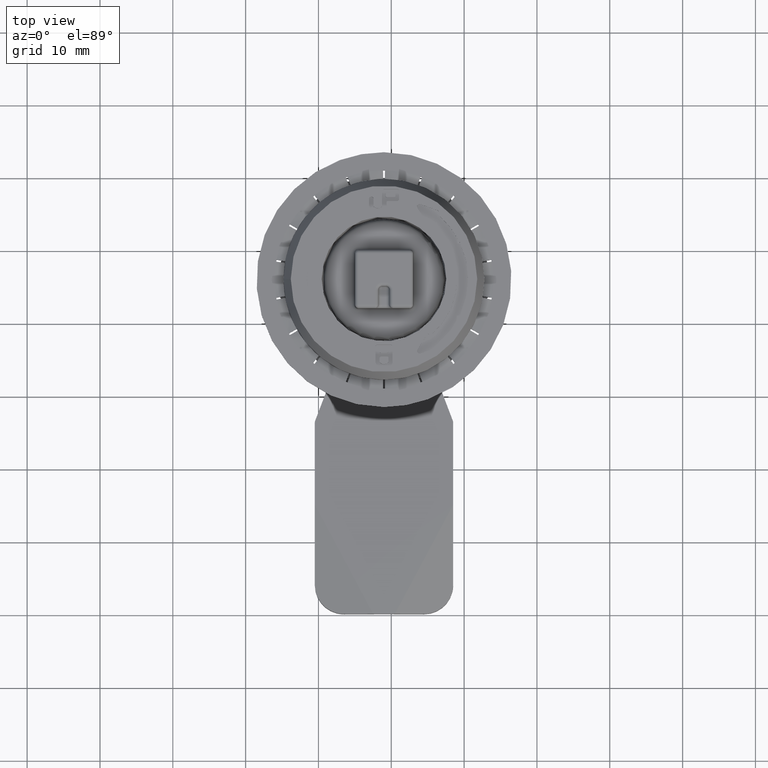
[diagram: clean part render]
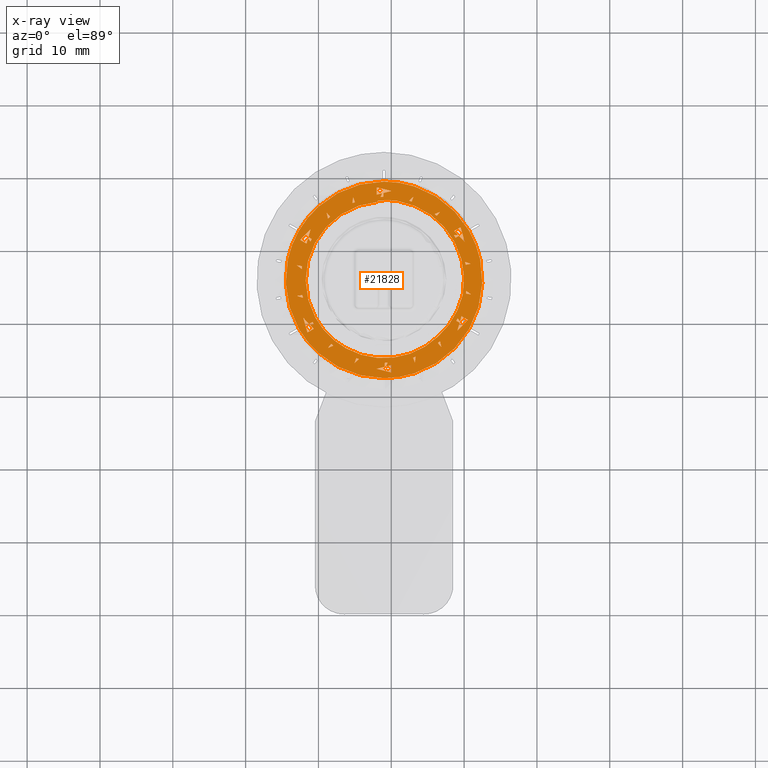
[diagram: x-ray — body ghosted, one internal face saturated and labeled with its STEP entity id]
A machine part, top view, then the same camera in x-ray: the body is ghosted and one INTERNAL B-rep face — a face not visible from any outside direction — is saturated and labeled: STEP entity #21828.
In plain terms, the highlighted planar face has unit normal (0, 0, 1).
Its self-contained STEP definition (entity closure, byte-faithful):
#329=PLANE('',#23096);
#505=CIRCLE('',#22989,11.);
#507=CIRCLE('',#22994,10.75);
#510=CIRCLE('',#22999,11.4011061699629);
#512=CIRCLE('',#23002,11.4011061707328);
#514=CIRCLE('',#23005,11.4011061683875);
#516=CIRCLE('',#23008,11.4011061719454);
#518=CIRCLE('',#23011,11.4011061685947);
#520=CIRCLE('',#23014,11.4011061693796);
#522=CIRCLE('',#23017,11.4011061726943);
#524=CIRCLE('',#23020,11.401106166316);
#526=CIRCLE('',#23023,11.4011061661424);
#528=CIRCLE('',#23026,11.401106169637);
#530=CIRCLE('',#23029,11.4011061709176);
#532=CIRCLE('',#23032,11.4011061681452);
#534=CIRCLE('',#23035,11.4011061720848);
#536=CIRCLE('',#23038,11.4011061711877);
#538=CIRCLE('',#23041,11.4011061697847);
#540=CIRCLE('',#23044,11.4011061702114);
#542=CIRCLE('',#23047,11.4011061664844);
#544=CIRCLE('',#23050,11.4011061694002);
#581=CIRCLE('',#23095,10.75);
#582=CIRCLE('',#23097,10.75);
#1448=FACE_BOUND('',#2826,.T.);
#1449=FACE_BOUND('',#2827,.T.);
#1450=FACE_BOUND('',#2828,.T.);
#1451=FACE_BOUND('',#2829,.T.);
#1452=FACE_BOUND('',#2830,.T.);
#1453=FACE_BOUND('',#2831,.T.);
#1454=FACE_BOUND('',#2832,.T.);
#1455=FACE_BOUND('',#2833,.T.);
#1456=FACE_BOUND('',#2834,.T.);
#1457=FACE_BOUND('',#2835,.T.);
#1458=FACE_BOUND('',#2836,.T.);
#1459=FACE_BOUND('',#2837,.T.);
#1460=FACE_BOUND('',#2838,.T.);
#1461=FACE_BOUND('',#2839,.T.);
#1462=FACE_BOUND('',#2840,.T.);
#1463=FACE_BOUND('',#2841,.T.);
#1464=FACE_BOUND('',#2842,.T.);
#1465=FACE_BOUND('',#2843,.T.);
#1466=FACE_BOUND('',#2844,.T.);
#1607=FACE_OUTER_BOUND('',#2825,.T.);
#2825=EDGE_LOOP('',(#14641,#14642,#14643,#14644,#14645,#14646));
#2826=EDGE_LOOP('',(#14647,#14648,#14649,#14650,#14651,#14652,#14653));
#2827=EDGE_LOOP('',(#14654,#14655,#14656));
#2828=EDGE_LOOP('',(#14657,#14658,#14659));
#2829=EDGE_LOOP('',(#14660,#14661,#14662,#14663,#14664,#14665,#14666));
#2830=EDGE_LOOP('',(#14667,#14668,#14669));
#2831=EDGE_LOOP('',(#14670,#14671,#14672));
#2832=EDGE_LOOP('',(#14673,#14674,#14675,#14676,#14677,#14678,#14679));
#2833=EDGE_LOOP('',(#14680,#14681,#14682));
#2834=EDGE_LOOP('',(#14683,#14684,#14685));
#2835=EDGE_LOOP('',(#14686,#14687,#14688,#14689,#14690,#14691,#14692));
#2836=EDGE_LOOP('',(#14693,#14694,#14695));
#2837=EDGE_LOOP('',(#14696,#14697,#14698));
#2838=EDGE_LOOP('',(#14699,#14700,#14701,#14702,#14703,#14704,#14705));
#2839=EDGE_LOOP('',(#14706,#14707,#14708));
#2840=EDGE_LOOP('',(#14709,#14710,#14711));
#2841=EDGE_LOOP('',(#14712,#14713,#14714,#14715,#14716,#14717,#14718));
#2842=EDGE_LOOP('',(#14719,#14720,#14721));
#2843=EDGE_LOOP('',(#14722,#14723,#14724));
#2844=EDGE_LOOP('',(#14725,#14726,#14727,#14728,#14729,#14730,#14731));
#4101=B_SPLINE_CURVE_WITH_KNOTS('',3,(#29864,#29865,#29866,#29867,#29868,
#29869,#29870),.UNSPECIFIED.,.F.,.F.,(4,3,4),(0.,0.0419832156947917,1.),
 .UNSPECIFIED.);
#4122=B_SPLINE_CURVE_WITH_KNOTS('',3,(#30110,#30111,#30112,#30113,#30114,
#30115,#30116,#30117,#30118,#30119,#30120,#30121,#30122),.UNSPECIFIED.,
 .F.,.F.,(4,3,3,3,4),(2.16908114310143E-7,0.633043742757415,0.680041436642877,
0.892625990137225,1.),.UNSPECIFIED.);
#4224=B_SPLINE_CURVE_WITH_KNOTS('',3,(#32607,#32608,#32609,#32610,#32611,
#32612,#32613,#32614,#32615,#32616),.UNSPECIFIED.,.F.,.F.,(4,2,2,2,4),(1.93284559419782E-6,
0.354007703590843,0.708010203659152,1.06202066225463,1.41599932362331),
 .UNSPECIFIED.);
#4225=B_SPLINE_CURVE_WITH_KNOTS('',3,(#32618,#32619,#32620,#32621,#32622,
#32623,#32624,#32625,#32626,#32627),.UNSPECIFIED.,.F.,.F.,(4,1,1,1,1,1,
1,4),(0.,0.128571425109577,0.277142855084432,0.425714285059201,0.574285715034008,
0.722857145008806,0.871428574983662,1.),.UNSPECIFIED.);
#4226=B_SPLINE_CURVE_WITH_KNOTS('',3,(#32629,#32630,#32631,#32632,#32633,
#32634,#32635,#32636,#32637,#32638),.UNSPECIFIED.,.F.,.F.,(4,2,2,2,4),(-1.41596042771311,
-1.06196428020511,-0.707971369576811,-0.353970519497574,-1.46196090577001E-6),
 .UNSPECIFIED.);
#4227=B_SPLINE_CURVE_WITH_KNOTS('',3,(#32640,#32641,#32642,#32643,#32644,
#32645,#32646,#32647,#32648,#32649,#32650),.UNSPECIFIED.,.F.,.F.,(4,1,1,
1,1,1,1,1,4),(0.,0.0243243728208228,0.164864909345448,0.305405445870073,
0.445945982394692,0.586486518919317,0.727027055443942,0.867567591968567,
1.),.UNSPECIFIED.);
#4228=B_SPLINE_CURVE_WITH_KNOTS('',3,(#32652,#32653,#32654,#32655,#32656,
#32657,#32658,#32659,#32660,#32661,#32662,#32663,#32664,#32665,#32666,#32667,
#32668,#32669,#32670,#32671,#32672,#32673,#32674,#32675,#32676,#32677,#32678,
#32679),.UNSPECIFIED.,.F.,.F.,(4,3,3,3,3,3,3,3,3,4),(0.,0.0081081282640541,
0.148648663022758,0.2891891977805,0.429729732538248,0.570270267295995,0.710810802053737,
0.851351336811485,0.991891871569232,1.),.UNSPECIFIED.);
#4229=B_SPLINE_CURVE_WITH_KNOTS('',3,(#32680,#32681,#32682,#32683,#32684,
#32685,#32686,#32687,#32688,#32689,#32690,#32691,#32692,#32693,#32694,#32695,
#32696,#32697,#32698,#32699,#32700,#32701,#32702,#32703,#32704),
 .UNSPECIFIED.,.F.,.F.,(4,3,3,3,3,3,3,3,4),(0.,0.0243243726907093,0.164864909215614,
0.30540544574147,0.445945982266375,0.58648651879128,0.727027055316185,0.867567591841084,
1.),.UNSPECIFIED.);
#4230=B_SPLINE_CURVE_WITH_KNOTS('',3,(#32708,#32709,#32710,#32711,#32712,
#32713),.UNSPECIFIED.,.F.,.F.,(4,2,4),(-0.0822762916448192,-0.0411395501126673,
-1.79073668617172E-5),.UNSPECIFIED.);
#4231=B_SPLINE_CURVE_WITH_KNOTS('',3,(#32716,#32717,#32718,#32719,#32720,
#32721),.UNSPECIFIED.,.F.,.F.,(4,2,4),(-0.0822762916453266,-0.0411395501129682,
-1.79073667541706E-5),.UNSPECIFIED.);
#4232=B_SPLINE_CURVE_WITH_KNOTS('',3,(#32723,#32724,#32725,#32726,#32727,
#32728),.UNSPECIFIED.,.F.,.F.,(4,2,4),(-0.0560574972412979,-0.028641767561746,
-1.20134654375303E-5),.UNSPECIFIED.);
#4233=B_SPLINE_CURVE_WITH_KNOTS('',3,(#32737,#32738,#32739,#32740,#32741,
#32742),.UNSPECIFIED.,.F.,.F.,(4,2,4),(-0.0822762916456669,-0.0411395501129664,
-1.79073666650056E-5),.UNSPECIFIED.);
#4234=B_SPLINE_CURVE_WITH_KNOTS('',3,(#32745,#32746,#32747,#32748,#32749,
#32750),.UNSPECIFIED.,.F.,.F.,(4,2,4),(-0.0822762916448311,-0.0411395501124006,
-1.79073665879447E-5),.UNSPECIFIED.);
#4235=B_SPLINE_CURVE_WITH_KNOTS('',3,(#32752,#32753,#32754,#32755,#32756,
#32757),.UNSPECIFIED.,.F.,.F.,(4,2,4),(-0.0560577644589737,-0.0286419063829091,
-1.2013465320867E-5),.UNSPECIFIED.);
#4236=B_SPLINE_CURVE_WITH_KNOTS('',3,(#32766,#32767,#32768,#32769,#32770,
#32771),.UNSPECIFIED.,.F.,.F.,(4,2,4),(-0.0822762916461592,-0.0411395501128744,
-1.7907367106053E-5),.UNSPECIFIED.);
#4237=B_SPLINE_CURVE_WITH_KNOTS('',3,(#32774,#32775,#32776,#32777,#32778,
#32779),.UNSPECIFIED.,.F.,.F.,(4,2,4),(-0.0822762916453506,-0.0411395501126497,
-1.79073664604178E-5),.UNSPECIFIED.);
#4238=B_SPLINE_CURVE_WITH_KNOTS('',3,(#32781,#32782,#32783,#32784,#32785,
#32786),.UNSPECIFIED.,.F.,.F.,(4,2,4),(-0.0560592423619338,-0.0286426741596105,
-1.20134653172947E-5),.UNSPECIFIED.);
#4239=B_SPLINE_CURVE_WITH_KNOTS('',3,(#32795,#32796,#32797,#32798,#32799,
#32800),.UNSPECIFIED.,.F.,.F.,(4,2,4),(-0.0822762916450103,-0.0411395501125274,
-1.79073668386345E-5),.UNSPECIFIED.);
#4240=B_SPLINE_CURVE_WITH_KNOTS('',3,(#32803,#32804,#32805,#32806,#32807,
#32808),.UNSPECIFIED.,.F.,.F.,(4,2,4),(-0.0822762916451734,-0.0411395501126704,
-1.79073667507191E-5),.UNSPECIFIED.);
#4241=B_SPLINE_CURVE_WITH_KNOTS('',3,(#32810,#32811,#32812,#32813,#32814,
#32815),.UNSPECIFIED.,.F.,.F.,(4,2,4),(-0.056060453052265,-0.0286433031193188,
-1.2013465452146E-5),.UNSPECIFIED.);
#4242=B_SPLINE_CURVE_WITH_KNOTS('',3,(#32824,#32825,#32826,#32827,#32828,
#32829),.UNSPECIFIED.,.F.,.F.,(4,2,4),(-0.0822762916455337,-0.0411395501128652,
-1.79073665372401E-5),.UNSPECIFIED.);
#4243=B_SPLINE_CURVE_WITH_KNOTS('',3,(#32832,#32833,#32834,#32835,#32836,
#32837),.UNSPECIFIED.,.F.,.F.,(4,2,4),(-0.0822762916450817,-0.0411395501125351,
-1.79073665619103E-5),.UNSPECIFIED.);
#4244=B_SPLINE_CURVE_WITH_KNOTS('',3,(#32839,#32840,#32841,#32842,#32843,
#32844),.UNSPECIFIED.,.F.,.F.,(4,2,4),(-0.0560601858323974,-0.028643164297338,
-1.20134653189661E-5),.UNSPECIFIED.);
#4245=B_SPLINE_CURVE_WITH_KNOTS('',3,(#32853,#32854,#32855,#32856,#32857,
#32858),.UNSPECIFIED.,.F.,.F.,(4,2,4),(-0.0822762916457709,-0.0411395501128844,
-1.79073670869515E-5),.UNSPECIFIED.);
#4246=B_SPLINE_CURVE_WITH_KNOTS('',3,(#32861,#32862,#32863,#32864,#32865,
#32866),.UNSPECIFIED.,.F.,.F.,(4,2,4),(-0.0822762916443358,-0.0411395501121324,
-1.79073662799071E-5),.UNSPECIFIED.);
#4247=B_SPLINE_CURVE_WITH_KNOTS('',3,(#32868,#32869,#32870,#32871,#32872,
#32873),.UNSPECIFIED.,.F.,.F.,(4,2,4),(-0.0560587079255039,-0.0286423965174396,
-1.20134653318734E-5),.UNSPECIFIED.);
#5686=LINE('',#32516,#7021);
#5688=LINE('',#32526,#7023);
#5690=LINE('',#32536,#7025);
#5692=LINE('',#32546,#7027);
#5694=LINE('',#32556,#7029);
#5696=LINE('',#32566,#7031);
#5698=LINE('',#32706,#7033);
#5699=LINE('',#32714,#7034);
#5700=LINE('',#32722,#7035);
#5701=LINE('',#32730,#7036);
#5702=LINE('',#32732,#7037);
#5703=LINE('',#32734,#7038);
#5704=LINE('',#32735,#7039);
#5705=LINE('',#32743,#7040);
#5706=LINE('',#32751,#7041);
#5707=LINE('',#32759,#7042);
#5708=LINE('',#32761,#7043);
#5709=LINE('',#32763,#7044);
#5710=LINE('',#32764,#7045);
#5711=LINE('',#32772,#7046);
#5712=LINE('',#32780,#7047);
#5713=LINE('',#32788,#7048);
#5714=LINE('',#32790,#7049);
#5715=LINE('',#32792,#7050);
#5716=LINE('',#32793,#7051);
#5717=LINE('',#32801,#7052);
#5718=LINE('',#32809,#7053);
#5719=LINE('',#32817,#7054);
#5720=LINE('',#32819,#7055);
#5721=LINE('',#32821,#7056);
#5722=LINE('',#32822,#7057);
#5723=LINE('',#32830,#7058);
#5724=LINE('',#32838,#7059);
#5725=LINE('',#32846,#7060);
#5726=LINE('',#32848,#7061);
#5727=LINE('',#32850,#7062);
#5728=LINE('',#32851,#7063);
#5729=LINE('',#32859,#7064);
#5730=LINE('',#32867,#7065);
#5731=LINE('',#32875,#7066);
#5732=LINE('',#32877,#7067);
#5733=LINE('',#32879,#7068);
#5734=LINE('',#32880,#7069);
#7021=VECTOR('',#24701,0.778450819482512);
#7023=VECTOR('',#24705,0.778463887404714);
#7025=VECTOR('',#24709,0.778478019597384);
#7027=VECTOR('',#24713,0.778479083927199);
#7029=VECTOR('',#24717,0.778466015965985);
#7031=VECTOR('',#24721,0.778451883714704);
#7033=VECTOR('',#24731,0.152908654505681);
#7034=VECTOR('',#24732,0.720000000150876);
#7035=VECTOR('',#24733,0.720000000153043);
#7036=VECTOR('',#24734,1.00000000000197);
#7037=VECTOR('',#24735,2.06155281280738);
#7038=VECTOR('',#24736,1.13814281660732);
#7039=VECTOR('',#24737,0.533520386759054);
#7040=VECTOR('',#24738,0.720000000157835);
#7041=VECTOR('',#24739,0.720000000153229);
#7042=VECTOR('',#24740,1.00000000000185);
#7043=VECTOR('',#24741,2.06155281281156);
#7044=VECTOR('',#24742,1.13813112654512);
#7045=VECTOR('',#24743,0.533522374301732);
#7046=VECTOR('',#24744,0.720000000159854);
#7047=VECTOR('',#24745,0.720000000154977);
#7048=VECTOR('',#24746,1.00000000000099);
#7049=VECTOR('',#24747,2.06155281280815);
#7050=VECTOR('',#24748,1.13812461495385);
#7051=VECTOR('',#24749,0.533533366815669);
#7052=VECTOR('',#24750,0.720000000149474);
#7053=VECTOR('',#24751,0.720000000152998);
#7054=VECTOR('',#24752,1.00000000000197);
#7055=VECTOR('',#24753,2.06155281280637);
#7056=VECTOR('',#24754,1.13812979342894);
#7057=VECTOR('',#24755,0.53354237177595);
#7058=VECTOR('',#24756,0.720000000157464);
#7059=VECTOR('',#24757,0.720000000153228);
#7060=VECTOR('',#24758,1.00000000000099);
#7061=VECTOR('',#24759,2.06155281281081);
#7062=VECTOR('',#24760,1.13814148349589);
#7063=VECTOR('',#24761,0.533540384237071);
#7064=VECTOR('',#24762,0.720000000160873);
#7065=VECTOR('',#24763,0.720000000154975);
#7066=VECTOR('',#24764,1.000000000001);
#7067=VECTOR('',#24765,2.06155281280817);
#7068=VECTOR('',#24766,1.1381479950828);
#7069=VECTOR('',#24767,0.533529391733414);
#8236=VERTEX_POINT('',#28989);
#8239=VERTEX_POINT('',#29235);
#8286=VERTEX_POINT('',#29851);
#8306=VERTEX_POINT('',#30109);
#8328=VERTEX_POINT('',#30278);
#8342=VERTEX_POINT('',#30454);
#8343=VERTEX_POINT('',#30468);
#8351=VERTEX_POINT('',#30510);
#8352=VERTEX_POINT('',#30524);
#8360=VERTEX_POINT('',#30566);
#8361=VERTEX_POINT('',#30580);
#8369=VERTEX_POINT('',#30622);
#8370=VERTEX_POINT('',#30636);
#8378=VERTEX_POINT('',#30678);
#8379=VERTEX_POINT('',#30692);
#8387=VERTEX_POINT('',#30734);
#8388=VERTEX_POINT('',#30748);
#8396=VERTEX_POINT('',#30790);
#8397=VERTEX_POINT('',#30804);
#8405=VERTEX_POINT('',#30846);
#8406=VERTEX_POINT('',#30860);
#8414=VERTEX_POINT('',#30902);
#8415=VERTEX_POINT('',#30916);
#8423=VERTEX_POINT('',#30958);
#8424=VERTEX_POINT('',#30972);
#8432=VERTEX_POINT('',#31014);
#8433=VERTEX_POINT('',#31028);
#8441=VERTEX_POINT('',#31070);
#8442=VERTEX_POINT('',#31084);
#8450=VERTEX_POINT('',#31126);
#8451=VERTEX_POINT('',#31140);
#8459=VERTEX_POINT('',#31182);
#8460=VERTEX_POINT('',#31196);
#8468=VERTEX_POINT('',#31238);
#8469=VERTEX_POINT('',#31252);
#8477=VERTEX_POINT('',#31294);
#8478=VERTEX_POINT('',#31308);
#8486=VERTEX_POINT('',#31350);
#8487=VERTEX_POINT('',#31364);
#8495=VERTEX_POINT('',#31406);
#8496=VERTEX_POINT('',#31420);
#8538=VERTEX_POINT('',#32509);
#8539=VERTEX_POINT('',#32514);
#8541=VERTEX_POINT('',#32519);
#8542=VERTEX_POINT('',#32524);
#8544=VERTEX_POINT('',#32529);
#8545=VERTEX_POINT('',#32534);
#8547=VERTEX_POINT('',#32539);
#8548=VERTEX_POINT('',#32544);
#8550=VERTEX_POINT('',#32549);
#8551=VERTEX_POINT('',#32554);
#8553=VERTEX_POINT('',#32559);
#8554=VERTEX_POINT('',#32564);
#8555=VERTEX_POINT('',#32568);
#8558=VERTEX_POINT('',#32601);
#8559=VERTEX_POINT('',#32605);
#8560=VERTEX_POINT('',#32606);
#8561=VERTEX_POINT('',#32617);
#8562=VERTEX_POINT('',#32628);
#8563=VERTEX_POINT('',#32639);
#8564=VERTEX_POINT('',#32651);
#8565=VERTEX_POINT('',#32707);
#8566=VERTEX_POINT('',#32715);
#8567=VERTEX_POINT('',#32729);
#8568=VERTEX_POINT('',#32731);
#8569=VERTEX_POINT('',#32733);
#8570=VERTEX_POINT('',#32736);
#8571=VERTEX_POINT('',#32744);
#8572=VERTEX_POINT('',#32758);
#8573=VERTEX_POINT('',#32760);
#8574=VERTEX_POINT('',#32762);
#8575=VERTEX_POINT('',#32765);
#8576=VERTEX_POINT('',#32773);
#8577=VERTEX_POINT('',#32787);
#8578=VERTEX_POINT('',#32789);
#8579=VERTEX_POINT('',#32791);
#8580=VERTEX_POINT('',#32794);
#8581=VERTEX_POINT('',#32802);
#8582=VERTEX_POINT('',#32816);
#8583=VERTEX_POINT('',#32818);
#8584=VERTEX_POINT('',#32820);
#8585=VERTEX_POINT('',#32823);
#8586=VERTEX_POINT('',#32831);
#8587=VERTEX_POINT('',#32845);
#8588=VERTEX_POINT('',#32847);
#8589=VERTEX_POINT('',#32849);
#8590=VERTEX_POINT('',#32852);
#8591=VERTEX_POINT('',#32860);
#8592=VERTEX_POINT('',#32874);
#8593=VERTEX_POINT('',#32876);
#8594=VERTEX_POINT('',#32878);
#10579=EDGE_CURVE('',#8239,#8236,#505,.T.);
#10626=EDGE_CURVE('',#8286,#8239,#4101,.T.);
#10650=EDGE_CURVE('',#8236,#8306,#4122,.T.);
#10682=EDGE_CURVE('',#8286,#8328,#507,.T.);
#10699=EDGE_CURVE('',#8343,#8342,#510,.T.);
#10709=EDGE_CURVE('',#8352,#8351,#512,.T.);
#10719=EDGE_CURVE('',#8361,#8360,#514,.T.);
#10729=EDGE_CURVE('',#8370,#8369,#516,.T.);
#10739=EDGE_CURVE('',#8379,#8378,#518,.T.);
#10749=EDGE_CURVE('',#8388,#8387,#520,.T.);
#10759=EDGE_CURVE('',#8397,#8396,#522,.T.);
#10769=EDGE_CURVE('',#8406,#8405,#524,.T.);
#10779=EDGE_CURVE('',#8415,#8414,#526,.T.);
#10789=EDGE_CURVE('',#8424,#8423,#528,.T.);
#10799=EDGE_CURVE('',#8433,#8432,#530,.T.);
#10809=EDGE_CURVE('',#8442,#8441,#532,.T.);
#10819=EDGE_CURVE('',#8451,#8450,#534,.T.);
#10829=EDGE_CURVE('',#8460,#8459,#536,.T.);
#10839=EDGE_CURVE('',#8469,#8468,#538,.T.);
#10849=EDGE_CURVE('',#8478,#8477,#540,.T.);
#10859=EDGE_CURVE('',#8487,#8486,#542,.T.);
#10869=EDGE_CURVE('',#8496,#8495,#544,.T.);
#10950=EDGE_CURVE('',#8539,#8538,#5686,.T.);
#10953=EDGE_CURVE('',#8542,#8541,#5688,.T.);
#10956=EDGE_CURVE('',#8545,#8544,#5690,.T.);
#10959=EDGE_CURVE('',#8548,#8547,#5692,.T.);
#10962=EDGE_CURVE('',#8551,#8550,#5694,.T.);
#10965=EDGE_CURVE('',#8554,#8553,#5696,.T.);
#10972=EDGE_CURVE('',#8555,#8558,#581,.T.);
#10973=EDGE_CURVE('',#8559,#8560,#4224,.T.);
#10974=EDGE_CURVE('',#8559,#8561,#4225,.T.);
#10975=EDGE_CURVE('',#8561,#8562,#4226,.T.);
#10976=EDGE_CURVE('',#8562,#8563,#4227,.T.);
#10977=EDGE_CURVE('',#8564,#8563,#4228,.T.);
#10978=EDGE_CURVE('',#8560,#8564,#4229,.T.);
#10979=EDGE_CURVE('',#8328,#8555,#582,.T.);
#10980=EDGE_CURVE('',#8306,#8558,#5698,.T.);
#10981=EDGE_CURVE('',#8565,#8351,#4230,.T.);
#10982=EDGE_CURVE('',#8352,#8565,#5699,.T.);
#10983=EDGE_CURVE('',#8566,#8360,#4231,.T.);
#10984=EDGE_CURVE('',#8361,#8566,#5700,.T.);
#10985=EDGE_CURVE('',#8538,#8369,#4232,.T.);
#10986=EDGE_CURVE('',#8567,#8539,#5701,.T.);
#10987=EDGE_CURVE('',#8568,#8567,#5702,.T.);
#10988=EDGE_CURVE('',#8569,#8568,#5703,.T.);
#10989=EDGE_CURVE('',#8370,#8569,#5704,.T.);
#10990=EDGE_CURVE('',#8570,#8378,#4233,.T.);
#10991=EDGE_CURVE('',#8379,#8570,#5705,.T.);
#10992=EDGE_CURVE('',#8571,#8387,#4234,.T.);
#10993=EDGE_CURVE('',#8388,#8571,#5706,.T.);
#10994=EDGE_CURVE('',#8541,#8396,#4235,.T.);
#10995=EDGE_CURVE('',#8572,#8542,#5707,.T.);
#10996=EDGE_CURVE('',#8573,#8572,#5708,.T.);
#10997=EDGE_CURVE('',#8574,#8573,#5709,.T.);
#10998=EDGE_CURVE('',#8397,#8574,#5710,.T.);
#10999=EDGE_CURVE('',#8575,#8405,#4236,.T.);
#11000=EDGE_CURVE('',#8406,#8575,#5711,.T.);
#11001=EDGE_CURVE('',#8576,#8414,#4237,.T.);
#11002=EDGE_CURVE('',#8415,#8576,#5712,.T.);
#11003=EDGE_CURVE('',#8544,#8423,#4238,.T.);
#11004=EDGE_CURVE('',#8577,#8545,#5713,.T.);
#11005=EDGE_CURVE('',#8578,#8577,#5714,.T.);
#11006=EDGE_CURVE('',#8579,#8578,#5715,.T.);
#11007=EDGE_CURVE('',#8424,#8579,#5716,.T.);
#11008=EDGE_CURVE('',#8580,#8432,#4239,.T.);
#11009=EDGE_CURVE('',#8433,#8580,#5717,.T.);
#11010=EDGE_CURVE('',#8581,#8441,#4240,.T.);
#11011=EDGE_CURVE('',#8442,#8581,#5718,.T.);
#11012=EDGE_CURVE('',#8547,#8450,#4241,.T.);
#11013=EDGE_CURVE('',#8582,#8548,#5719,.T.);
#11014=EDGE_CURVE('',#8583,#8582,#5720,.T.);
#11015=EDGE_CURVE('',#8584,#8583,#5721,.T.);
#11016=EDGE_CURVE('',#8451,#8584,#5722,.T.);
#11017=EDGE_CURVE('',#8585,#8459,#4242,.T.);
#11018=EDGE_CURVE('',#8460,#8585,#5723,.T.);
#11019=EDGE_CURVE('',#8586,#8468,#4243,.T.);
#11020=EDGE_CURVE('',#8469,#8586,#5724,.T.);
#11021=EDGE_CURVE('',#8550,#8477,#4244,.T.);
#11022=EDGE_CURVE('',#8587,#8551,#5725,.T.);
#11023=EDGE_CURVE('',#8588,#8587,#5726,.T.);
#11024=EDGE_CURVE('',#8589,#8588,#5727,.T.);
#11025=EDGE_CURVE('',#8478,#8589,#5728,.T.);
#11026=EDGE_CURVE('',#8590,#8486,#4245,.T.);
#11027=EDGE_CURVE('',#8487,#8590,#5729,.T.);
#11028=EDGE_CURVE('',#8591,#8495,#4246,.T.);
#11029=EDGE_CURVE('',#8496,#8591,#5730,.T.);
#11030=EDGE_CURVE('',#8553,#8342,#4247,.T.);
#11031=EDGE_CURVE('',#8592,#8554,#5731,.T.);
#11032=EDGE_CURVE('',#8593,#8592,#5732,.T.);
#11033=EDGE_CURVE('',#8594,#8593,#5733,.T.);
#11034=EDGE_CURVE('',#8343,#8594,#5734,.T.);
#14641=ORIENTED_EDGE('',*,*,#10973,.F.);
#14642=ORIENTED_EDGE('',*,*,#10974,.T.);
#14643=ORIENTED_EDGE('',*,*,#10975,.T.);
#14644=ORIENTED_EDGE('',*,*,#10976,.T.);
#14645=ORIENTED_EDGE('',*,*,#10977,.F.);
#14646=ORIENTED_EDGE('',*,*,#10978,.F.);
#14647=ORIENTED_EDGE('',*,*,#10626,.F.);
#14648=ORIENTED_EDGE('',*,*,#10682,.T.);
#14649=ORIENTED_EDGE('',*,*,#10979,.T.);
#14650=ORIENTED_EDGE('',*,*,#10972,.T.);
#14651=ORIENTED_EDGE('',*,*,#10980,.F.);
#14652=ORIENTED_EDGE('',*,*,#10650,.F.);
#14653=ORIENTED_EDGE('',*,*,#10579,.F.);
#14654=ORIENTED_EDGE('',*,*,#10981,.F.);
#14655=ORIENTED_EDGE('',*,*,#10982,.F.);
#14656=ORIENTED_EDGE('',*,*,#10709,.T.);
#14657=ORIENTED_EDGE('',*,*,#10983,.F.);
#14658=ORIENTED_EDGE('',*,*,#10984,.F.);
#14659=ORIENTED_EDGE('',*,*,#10719,.T.);
#14660=ORIENTED_EDGE('',*,*,#10985,.F.);
#14661=ORIENTED_EDGE('',*,*,#10950,.F.);
#14662=ORIENTED_EDGE('',*,*,#10986,.F.);
#14663=ORIENTED_EDGE('',*,*,#10987,.F.);
#14664=ORIENTED_EDGE('',*,*,#10988,.F.);
#14665=ORIENTED_EDGE('',*,*,#10989,.F.);
#14666=ORIENTED_EDGE('',*,*,#10729,.T.);
#14667=ORIENTED_EDGE('',*,*,#10990,.F.);
#14668=ORIENTED_EDGE('',*,*,#10991,.F.);
#14669=ORIENTED_EDGE('',*,*,#10739,.T.);
#14670=ORIENTED_EDGE('',*,*,#10992,.F.);
#14671=ORIENTED_EDGE('',*,*,#10993,.F.);
#14672=ORIENTED_EDGE('',*,*,#10749,.T.);
#14673=ORIENTED_EDGE('',*,*,#10994,.F.);
#14674=ORIENTED_EDGE('',*,*,#10953,.F.);
#14675=ORIENTED_EDGE('',*,*,#10995,.F.);
#14676=ORIENTED_EDGE('',*,*,#10996,.F.);
#14677=ORIENTED_EDGE('',*,*,#10997,.F.);
#14678=ORIENTED_EDGE('',*,*,#10998,.F.);
#14679=ORIENTED_EDGE('',*,*,#10759,.T.);
#14680=ORIENTED_EDGE('',*,*,#10999,.F.);
#14681=ORIENTED_EDGE('',*,*,#11000,.F.);
#14682=ORIENTED_EDGE('',*,*,#10769,.T.);
#14683=ORIENTED_EDGE('',*,*,#11001,.F.);
#14684=ORIENTED_EDGE('',*,*,#11002,.F.);
#14685=ORIENTED_EDGE('',*,*,#10779,.T.);
#14686=ORIENTED_EDGE('',*,*,#11003,.F.);
#14687=ORIENTED_EDGE('',*,*,#10956,.F.);
#14688=ORIENTED_EDGE('',*,*,#11004,.F.);
#14689=ORIENTED_EDGE('',*,*,#11005,.F.);
#14690=ORIENTED_EDGE('',*,*,#11006,.F.);
#14691=ORIENTED_EDGE('',*,*,#11007,.F.);
#14692=ORIENTED_EDGE('',*,*,#10789,.T.);
#14693=ORIENTED_EDGE('',*,*,#11008,.F.);
#14694=ORIENTED_EDGE('',*,*,#11009,.F.);
#14695=ORIENTED_EDGE('',*,*,#10799,.T.);
#14696=ORIENTED_EDGE('',*,*,#11010,.F.);
#14697=ORIENTED_EDGE('',*,*,#11011,.F.);
#14698=ORIENTED_EDGE('',*,*,#10809,.T.);
#14699=ORIENTED_EDGE('',*,*,#11012,.F.);
#14700=ORIENTED_EDGE('',*,*,#10959,.F.);
#14701=ORIENTED_EDGE('',*,*,#11013,.F.);
#14702=ORIENTED_EDGE('',*,*,#11014,.F.);
#14703=ORIENTED_EDGE('',*,*,#11015,.F.);
#14704=ORIENTED_EDGE('',*,*,#11016,.F.);
#14705=ORIENTED_EDGE('',*,*,#10819,.T.);
#14706=ORIENTED_EDGE('',*,*,#11017,.F.);
#14707=ORIENTED_EDGE('',*,*,#11018,.F.);
#14708=ORIENTED_EDGE('',*,*,#10829,.T.);
#14709=ORIENTED_EDGE('',*,*,#11019,.F.);
#14710=ORIENTED_EDGE('',*,*,#11020,.F.);
#14711=ORIENTED_EDGE('',*,*,#10839,.T.);
#14712=ORIENTED_EDGE('',*,*,#11021,.F.);
#14713=ORIENTED_EDGE('',*,*,#10962,.F.);
#14714=ORIENTED_EDGE('',*,*,#11022,.F.);
#14715=ORIENTED_EDGE('',*,*,#11023,.F.);
#14716=ORIENTED_EDGE('',*,*,#11024,.F.);
#14717=ORIENTED_EDGE('',*,*,#11025,.F.);
#14718=ORIENTED_EDGE('',*,*,#10849,.T.);
#14719=ORIENTED_EDGE('',*,*,#11026,.F.);
#14720=ORIENTED_EDGE('',*,*,#11027,.F.);
#14721=ORIENTED_EDGE('',*,*,#10859,.T.);
#14722=ORIENTED_EDGE('',*,*,#11028,.F.);
#14723=ORIENTED_EDGE('',*,*,#11029,.F.);
#14724=ORIENTED_EDGE('',*,*,#10869,.T.);
#14725=ORIENTED_EDGE('',*,*,#11030,.F.);
#14726=ORIENTED_EDGE('',*,*,#10965,.F.);
#14727=ORIENTED_EDGE('',*,*,#11031,.F.);
#14728=ORIENTED_EDGE('',*,*,#11032,.F.);
#14729=ORIENTED_EDGE('',*,*,#11033,.F.);
#14730=ORIENTED_EDGE('',*,*,#11034,.F.);
#14731=ORIENTED_EDGE('',*,*,#10699,.T.);
#21828=ADVANCED_FACE('',(#1607,#1448,#1449,#1450,#1451,#1452,#1453,#1454,
#1455,#1456,#1457,#1458,#1459,#1460,#1461,#1462,#1463,#1464,#1465,#1466),
#329,.T.);
#22989=AXIS2_PLACEMENT_3D('',#29476,#24367,#24368);
#22994=AXIS2_PLACEMENT_3D('',#30280,#24380,#24381);
#22999=AXIS2_PLACEMENT_3D('',#30469,#24395,#24396);
#23002=AXIS2_PLACEMENT_3D('',#30525,#24407,#24408);
#23005=AXIS2_PLACEMENT_3D('',#30581,#24419,#24420);
#23008=AXIS2_PLACEMENT_3D('',#30637,#24431,#24432);
#23011=AXIS2_PLACEMENT_3D('',#30693,#24443,#24444);
#23014=AXIS2_PLACEMENT_3D('',#30749,#24455,#24456);
#23017=AXIS2_PLACEMENT_3D('',#30805,#24467,#24468);
#23020=AXIS2_PLACEMENT_3D('',#30861,#24479,#24480);
#23023=AXIS2_PLACEMENT_3D('',#30917,#24491,#24492);
#23026=AXIS2_PLACEMENT_3D('',#30973,#24503,#24504);
#23029=AXIS2_PLACEMENT_3D('',#31029,#24515,#24516);
#23032=AXIS2_PLACEMENT_3D('',#31085,#24527,#24528);
#23035=AXIS2_PLACEMENT_3D('',#31141,#24539,#24540);
#23038=AXIS2_PLACEMENT_3D('',#31197,#24551,#24552);
#23041=AXIS2_PLACEMENT_3D('',#31253,#24563,#24564);
#23044=AXIS2_PLACEMENT_3D('',#31309,#24575,#24576);
#23047=AXIS2_PLACEMENT_3D('',#31365,#24587,#24588);
#23050=AXIS2_PLACEMENT_3D('',#31421,#24599,#24600);
#23095=AXIS2_PLACEMENT_3D('',#32603,#24725,#24726);
#23096=AXIS2_PLACEMENT_3D('',#32604,#24727,#24728);
#23097=AXIS2_PLACEMENT_3D('',#32705,#24729,#24730);
#24367=DIRECTION('center_axis',(0.,0.,1.));
#24368=DIRECTION('ref_axis',(-1.,0.,0.));
#24380=DIRECTION('center_axis',(0.,0.,-1.));
#24381=DIRECTION('ref_axis',(-1.,0.,0.));
#24395=DIRECTION('center_axis',(0.,0.,1.));
#24396=DIRECTION('ref_axis',(-0.844221659541345,-0.535994206648969,0.));
#24407=DIRECTION('center_axis',(0.,0.,1.));
#24408=DIRECTION('ref_axis',(-0.609988048398687,-0.792410613767106,0.));
#24419=DIRECTION('center_axis',(0.,0.,1.));
#24420=DIRECTION('ref_axis',(-0.302180876152379,-0.953250606130298,0.));
#24431=DIRECTION('center_axis',(0.,0.,1.));
#24432=DIRECTION('ref_axis',(0.0420737694665429,-0.999114506912434,0.));
#24443=DIRECTION('center_axis',(0.,0.,1.));
#24444=DIRECTION('ref_axis',(0.381253697551676,-0.924470452801589,0.));
#24455=DIRECTION('center_axis',(0.,0.,1.));
#24456=DIRECTION('ref_axis',(0.674448803005335,-0.738321618351157,0.));
#24467=DIRECTION('center_axis',(0.,0.,1.));
#24468=DIRECTION('ref_axis',(0.886295429005138,-0.463120300272617,0.));
#24479=DIRECTION('center_axis',(0.,0.,1.));
#24480=DIRECTION('ref_axis',(0.991241745949139,-0.132059839041633,0.));
#24491=DIRECTION('center_axis',(0.,0.,1.));
#24492=DIRECTION('ref_axis',(0.976629679158781,0.214928987775534,0.));
#24503=DIRECTION('center_axis',(0.,0.,1.));
#24504=DIRECTION('ref_axis',(0.844221659541077,0.535994206649391,0.));
#24515=DIRECTION('center_axis',(0.,0.,1.));
#24516=DIRECTION('ref_axis',(0.609988048399247,0.792410613766675,0.));
#24527=DIRECTION('center_axis',(0.,0.,1.));
#24528=DIRECTION('ref_axis',(0.302180876152044,0.953250606130404,0.));
#24539=DIRECTION('center_axis',(0.,0.,1.));
#24540=DIRECTION('ref_axis',(-0.0420737694662528,0.999114506912446,0.));
#24551=DIRECTION('center_axis',(0.,0.,1.));
#24552=DIRECTION('ref_axis',(-0.38125369755039,0.924470452802119,0.));
#24563=DIRECTION('center_axis',(0.,0.,1.));
#24564=DIRECTION('ref_axis',(-0.674448803003645,0.7383216183527,0.));
#24575=DIRECTION('center_axis',(0.,0.,1.));
#24576=DIRECTION('ref_axis',(-0.886295429006883,0.463120300269277,0.));
#24587=DIRECTION('center_axis',(0.,0.,1.));
#24588=DIRECTION('ref_axis',(-0.991241745949171,0.132059839041397,0.));
#24599=DIRECTION('center_axis',(0.,0.,1.));
#24600=DIRECTION('ref_axis',(-0.976629679160121,-0.214928987769445,0.));
#24701=DIRECTION('',(-0.970142500144414,-0.242535625040006,0.));
#24705=DIRECTION('',(-0.275029237468824,-0.961435862934869,0.));
#24709=DIRECTION('',(0.695113262677854,-0.718900237897686,0.));
#24713=DIRECTION('',(0.970142500144414,0.242535625040006,0.));
#24717=DIRECTION('',(0.275029237468824,0.961435862934869,0.));
#24721=DIRECTION('',(-0.695113262677854,0.718900237897686,0.));
#24725=DIRECTION('center_axis',(0.,0.,-1.));
#24726=DIRECTION('ref_axis',(-1.,0.,0.));
#24727=DIRECTION('center_axis',(0.,0.,1.));
#24728=DIRECTION('ref_axis',(-1.,0.,0.));
#24729=DIRECTION('center_axis',(0.,0.,-1.));
#24730=DIRECTION('ref_axis',(-1.,0.,0.));
#24731=DIRECTION('',(0.0785958369725624,-0.996906562527593,0.));
#24732=DIRECTION('',(-0.636055056898606,-0.77164367722007,0.));
#24733=DIRECTION('',(-0.333778562301748,-0.942651511083379,0.));
#24734=DIRECTION('',(0.,1.,0.));
#24735=DIRECTION('',(0.970142500144414,-0.242535625040006,0.));
#24736=DIRECTION('',(-0.970142500144414,-0.242535625040006,0.));
#24737=DIRECTION('',(0.00875655295598249,-0.999961660655212,0.));
#24738=DIRECTION('',(0.350235498693872,-0.936661676089427,0.));
#24739=DIRECTION('',(0.649470874363223,-0.760386469733563,0.));
#24740=DIRECTION('',(-0.866025403784634,0.499999999999662,0.));
#24741=DIRECTION('',(0.695113262677808,0.71890023789773,0.));
#24742=DIRECTION('',(-0.275029237468824,-0.961435862934869,0.));
#24743=DIRECTION('',(0.870370477415908,-0.49239743301809,0.));
#24744=DIRECTION('',(0.98629055559165,-0.165017998868956,0.));
#24745=DIRECTION('',(0.98324943666483,0.182265041349936,0.));
#24746=DIRECTION('',(-0.866025403784864,-0.499999999999264,0.));
#24747=DIRECTION('',(-0.275029237464469,0.961435862936115,0.));
#24748=DIRECTION('',(0.695113262677854,-0.718900237897686,0.));
#24749=DIRECTION('',(0.861613924459647,0.507564227637494,0.));
#24750=DIRECTION('',(0.636055056898606,0.77164367722007,0.));
#24751=DIRECTION('',(0.333778562301748,0.942651511083379,0.));
#24752=DIRECTION('',(0.,-1.,0.));
#24753=DIRECTION('',(-0.970142500144414,0.242535625040006,0.));
#24754=DIRECTION('',(0.970142500144414,0.242535625040006,0.));
#24755=DIRECTION('',(-0.00875655295598249,0.999961660655212,0.));
#24756=DIRECTION('',(-0.350235498693872,0.936661676089427,0.));
#24757=DIRECTION('',(-0.649470874363223,0.760386469733563,0.));
#24758=DIRECTION('',(0.866025403784634,-0.499999999999662,0.));
#24759=DIRECTION('',(-0.695113262677808,-0.71890023789773,0.));
#24760=DIRECTION('',(0.275029237468824,0.961435862934869,0.));
#24761=DIRECTION('',(-0.870370477415908,0.49239743301809,0.));
#24762=DIRECTION('',(-0.98629055559165,0.165017998868956,0.));
#24763=DIRECTION('',(-0.98324943666483,-0.182265041349936,0.));
#24764=DIRECTION('',(0.866025403784864,0.499999999999264,0.));
#24765=DIRECTION('',(0.275029237464469,-0.961435862936115,0.));
#24766=DIRECTION('',(-0.695113262677854,0.718900237897686,0.));
#24767=DIRECTION('',(-0.861613924459647,-0.507564227637494,0.));
#28989=CARTESIAN_POINT('',(170.814924303884,215.849241894476,-8.49999999649835));
#29235=CARTESIAN_POINT('',(179.790192499033,202.861835873039,-8.50000000000001));
#29476=CARTESIAN_POINT('Origin',(169.,205.,-8.50000000000001));
#29851=CARTESIAN_POINT('',(176.399342502894,197.20178029773,-8.50000000000001));
#29864=CARTESIAN_POINT('Ctrl Pts',(176.399342502894,197.20178029773,-8.49999999999994));
#29865=CARTESIAN_POINT('Ctrl Pts',(176.470219951353,197.263862643233,-8.49999999999982));
#29866=CARTESIAN_POINT('Ctrl Pts',(176.540185941619,197.32686783022,-8.50000000000012));
#29867=CARTESIAN_POINT('Ctrl Pts',(176.609217525722,197.390782474278,-8.50000000000007));
#29868=CARTESIAN_POINT('Ctrl Pts',(178.184452178994,198.849253455051,-8.49999999999883));
#29869=CARTESIAN_POINT('Ctrl Pts',(179.283048791012,200.770911276164,-8.49999999999813));
#29870=CARTESIAN_POINT('Ctrl Pts',(179.790192499033,202.861835873039,-8.50000000000016));
#30109=CARTESIAN_POINT('',(168.143076768864,215.869181188316,-8.50000000000001));
#30110=CARTESIAN_POINT('Ctrl Pts',(170.814924301412,215.849241879344,-8.49999999999967));
#30111=CARTESIAN_POINT('Ctrl Pts',(170.253046060083,215.924412952324,-8.50000000000015));
#30112=CARTESIAN_POINT('Ctrl Pts',(169.690023098018,215.955701911167,-8.49999999999921));
#30113=CARTESIAN_POINT('Ctrl Pts',(169.125707176241,215.941180427883,-8.50000000000002));
#30114=CARTESIAN_POINT('Ctrl Pts',(169.083811878582,215.940102340519,-8.50000000000008));
#30115=CARTESIAN_POINT('Ctrl Pts',(169.041909487642,215.938769829111,-8.50000000000003));
#30116=CARTESIAN_POINT('Ctrl Pts',(169.,215.937181161544,-8.5));
#30117=CARTESIAN_POINT('Ctrl Pts',(168.810430917329,215.929995145435,-8.49999999999987));
#30118=CARTESIAN_POINT('Ctrl Pts',(168.620715616187,215.917572122768,-8.49999999999964));
#30119=CARTESIAN_POINT('Ctrl Pts',(168.430860860504,215.89992501767,-8.49999999999987));
#30120=CARTESIAN_POINT('Ctrl Pts',(168.334967409761,215.891011668107,-8.49999999999999));
#30121=CARTESIAN_POINT('Ctrl Pts',(168.239038582125,215.880764775011,-8.4999999999997));
#30122=CARTESIAN_POINT('Ctrl Pts',(168.143076768864,215.869181188316,-8.49999999999978));
#30278=CARTESIAN_POINT('',(163.784398404786,195.6,-8.5));
#30280=CARTESIAN_POINT('Origin',(169.,205.,-8.50000000000001));
#30454=CARTESIAN_POINT('',(159.376009988682,198.889454109651,-8.50000000460994));
#30468=CARTESIAN_POINT('',(159.177427570844,199.214062662248,-8.5));
#30469=CARTESIAN_POINT('Origin',(169.000913302087,205.000629000486,-8.5));
#30510=CARTESIAN_POINT('',(162.046337395766,195.966366674327,-8.50000000309057));
#30524=CARTESIAN_POINT('',(161.74870828871,196.20347974938,-8.50000000000001));
#30525=CARTESIAN_POINT('Origin',(169.000643092855,205.00090343548,-8.5));
#30566=CARTESIAN_POINT('',(165.555379128156,194.13286874448,-8.5000000030906));
#30580=CARTESIAN_POINT('',(165.194601804612,194.253887001548,-8.50000000000001));
#30581=CARTESIAN_POINT('Origin',(169.000295315742,205.001068900174,-8.5));
#30622=CARTESIAN_POINT('',(169.479892966311,193.610107219359,-8.50000000460991));
#30636=CARTESIAN_POINT('',(169.099482504558,193.600434077064,-8.5));
#30637=CARTESIAN_POINT('Origin',(168.999911920526,205.001105445136,-8.5));
#30678=CARTESIAN_POINT('',(173.346524646328,194.461134872659,-8.50000000309063));
#30692=CARTESIAN_POINT('',(172.992364146234,194.32193704257,-8.50000000000001));
#30693=CARTESIAN_POINT('Origin',(168.999539149104,205.001008650621,-8.5));
#30734=CARTESIAN_POINT('',(176.688901297555,196.583305190926,-8.50000000309059));
#30748=CARTESIAN_POINT('',(176.403707750841,196.33137199216,-8.50000000000001));
#30749=CARTESIAN_POINT('Origin',(168.999221962436,205.000790201866,-8.5));
#30790=CARTESIAN_POINT('',(179.10388297751,199.72065310971,-8.50000000460994));
#30804=CARTESIAN_POINT('',(178.922054933592,199.38637141482,-8.5));
#30805=CARTESIAN_POINT('Origin',(168.998998616011,205.000476444044,-8.5));
#30846=CARTESIAN_POINT('',(180.300187250441,203.49476819833,-8.50000000309063));
#30860=CARTESIAN_POINT('',(180.243655857398,203.118457293189,-8.50000000000001));
#30861=CARTESIAN_POINT('Origin',(168.998896059702,205.000105216615,-8.5));
#30902=CARTESIAN_POINT('',(180.133522169275,207.450436446443,-8.50000000309064));
#30916=CARTESIAN_POINT('',(180.209105946105,207.07748499061,-8.50000000000001));
#30917=CARTESIAN_POINT('Origin',(168.99892664942,204.999721301478,-8.5));
#30958=CARTESIAN_POINT('',(178.623990011072,211.110545890349,-8.50000000460992));
#30972=CARTESIAN_POINT('',(178.82257242891,210.785937337752,-8.5));
#30973=CARTESIAN_POINT('Origin',(168.999086697945,204.999370999684,-8.5));
#31014=CARTESIAN_POINT('',(175.953662603989,214.033633325673,-8.50000000309068));
#31028=CARTESIAN_POINT('',(176.251291711044,213.79652025062,-8.50000000000001));
#31029=CARTESIAN_POINT('Origin',(168.999356906779,204.999096564379,-8.5));
#31070=CARTESIAN_POINT('',(172.444620871598,215.86713125552,-8.50000000309062));
#31084=CARTESIAN_POINT('',(172.805398195142,215.746112998452,-8.50000000000001));
#31085=CARTESIAN_POINT('Origin',(168.999704684089,204.998931100055,-8.5));
#31126=CARTESIAN_POINT('',(168.520107033443,216.389892780641,-8.50000000460997));
#31140=CARTESIAN_POINT('',(168.900517495195,216.399565922936,-8.5));
#31141=CARTESIAN_POINT('Origin',(169.000088079231,204.998894554725,-8.5));
#31182=CARTESIAN_POINT('',(164.653475353426,215.538865127341,-8.5000000030906));
#31196=CARTESIAN_POINT('',(165.007635853519,215.67806295743,-8.50000000000001));
#31197=CARTESIAN_POINT('Origin',(169.000460851624,204.998991346976,-8.5));
#31238=CARTESIAN_POINT('',(161.311098702199,213.416694809074,-8.50000000309061));
#31252=CARTESIAN_POINT('',(161.596292248913,213.66862800784,-8.50000000000001));
#31253=CARTESIAN_POINT('Origin',(169.000778037571,204.999209797818,-8.5));
#31294=CARTESIAN_POINT('',(158.896117022245,210.27934689029,-8.50000000460995));
#31308=CARTESIAN_POINT('',(159.077945066162,210.61362858518,-8.5));
#31309=CARTESIAN_POINT('Origin',(169.001001381563,204.999523557144,-8.5));
#31350=CARTESIAN_POINT('',(157.699812749313,206.50523180167,-8.50000000309059));
#31364=CARTESIAN_POINT('',(157.756344142356,206.881542706811,-8.50000000000001));
#31365=CARTESIAN_POINT('Origin',(169.001103940219,204.999894783364,-8.5));
#31406=CARTESIAN_POINT('',(157.866477830479,202.549563553557,-8.50000000309066));
#31420=CARTESIAN_POINT('',(157.790894053649,202.92251500939,-8.50000000000001));
#31421=CARTESIAN_POINT('Origin',(169.001073353531,205.00027869915,-8.5));
#32509=CARTESIAN_POINT('',(169.244785362199,193.102091909658,-8.5));
#32514=CARTESIAN_POINT('',(169.999993586451,193.290893965725,-8.5));
#32516=CARTESIAN_POINT('',(168.999993586452,193.04089396572,-8.5));
#32519=CARTESIAN_POINT('',(179.426284690111,199.263033993692,-8.5));
#32524=CARTESIAN_POINT('',(179.640385019463,200.011477093042,-8.5));
#32526=CARTESIAN_POINT('',(179.356891370406,199.020451689258,-8.5));
#32529=CARTESIAN_POINT('',(179.181515415589,211.16094450663,-8.5));
#32534=CARTESIAN_POINT('',(178.640385019464,211.720592540117,-8.5));
#32536=CARTESIAN_POINT('',(179.35689137041,210.979567136333,-8.5));
#32539=CARTESIAN_POINT('',(168.755229231242,216.897933771067,-8.5));
#32544=CARTESIAN_POINT('',(167.999993586451,216.709124859865,-8.5));
#32546=CARTESIAN_POINT('',(168.99999358645,216.95912485987,-8.5));
#32549=CARTESIAN_POINT('',(158.573703068208,210.736986878373,-8.5));
#32554=CARTESIAN_POINT('',(158.359602153439,209.988541732548,-8.5));
#32556=CARTESIAN_POINT('',(158.643095802496,210.979567136332,-8.5));
#32559=CARTESIAN_POINT('',(158.818489924712,198.839055529868,-8.5));
#32564=CARTESIAN_POINT('',(159.359602153438,198.279426285473,-8.5));
#32566=CARTESIAN_POINT('',(158.643095802492,199.020451689257,-8.5));
#32568=CARTESIAN_POINT('',(159.6,199.784398404786,-8.50000000000001));
#32601=CARTESIAN_POINT('',(168.155094752545,215.716745547172,-8.50000000000001));
#32603=CARTESIAN_POINT('Origin',(169.,205.,-8.50000000000001));
#32604=CARTESIAN_POINT('Origin',(183.039993586451,219.040009412895,-8.5));
#32605=CARTESIAN_POINT('',(180.691333158836,198.25001136128,-8.50000141958916));
#32606=CARTESIAN_POINT('',(168.999993584814,191.500011975593,-8.50000104390024));
#32607=CARTESIAN_POINT('Ctrl Pts',(180.691326905347,198.25001497154,-8.5));
#32608=CARTESIAN_POINT('Ctrl Pts',(180.101340970553,197.22807473574,-8.5));
#32609=CARTESIAN_POINT('Ctrl Pts',(179.380284416331,196.288439574235,-8.50000000000001));
#32610=CARTESIAN_POINT('Ctrl Pts',(177.711583607285,194.619740727602,-8.50000000000001));
#32611=CARTESIAN_POINT('Ctrl Pts',(176.771922437894,193.89865607977,-8.50000000000001));
#32612=CARTESIAN_POINT('Ctrl Pts',(174.72803017235,192.718680594208,-8.50000000000001));
#32613=CARTESIAN_POINT('Ctrl Pts',(173.633264054691,192.265248481761,-8.50000000000001));
#32614=CARTESIAN_POINT('Ctrl Pts',(171.354924897062,191.654797643719,-8.50000000000001));
#32615=CARTESIAN_POINT('Ctrl Pts',(170.179890396138,191.500044326745,-8.5));
#32616=CARTESIAN_POINT('Ctrl Pts',(168.999993584742,191.500014843684,-8.5));
#32617=CARTESIAN_POINT('',(180.691332658169,211.750007171973,-8.49999999999996));
#32618=CARTESIAN_POINT('Ctrl Pts',(180.691332656806,198.250011651263,-8.49999999999996));
#32619=CARTESIAN_POINT('Ctrl Pts',(180.994257770443,198.774725778059,-8.49999999999996));
#32620=CARTESIAN_POINT('Ctrl Pts',(181.571042026354,199.949762533388,-8.49999999999996));
#32621=CARTESIAN_POINT('Ctrl Pts',(182.187121201906,201.865341115636,-8.49999999999996));
#32622=CARTESIAN_POINT('Ctrl Pts',(182.513575085392,203.946637545943,-8.49999999999996));
#32623=CARTESIAN_POINT('Ctrl Pts',(182.513575085502,206.053381278244,-8.49999999999996));
#32624=CARTESIAN_POINT('Ctrl Pts',(182.187121202237,208.134677708585,-8.49999999999996));
#32625=CARTESIAN_POINT('Ctrl Pts',(181.571042027011,210.050256290478,-8.49999999999996));
#32626=CARTESIAN_POINT('Ctrl Pts',(180.994257771475,211.225293045496,-8.49999999999996));
#32627=CARTESIAN_POINT('Ctrl Pts',(180.691332658169,211.750007171973,-8.49999999999996));
#32628=CARTESIAN_POINT('',(168.999993587446,218.500006697351,-8.5000009883414));
#32629=CARTESIAN_POINT('Ctrl Pts',(180.691326906714,211.750003851683,-8.5));
#32630=CARTESIAN_POINT('Ctrl Pts',(180.1013410006,212.771944038281,-8.5));
#32631=CARTESIAN_POINT('Ctrl Pts',(179.380284487437,213.711579159066,-8.49999999999996));
#32632=CARTESIAN_POINT('Ctrl Pts',(177.711583699298,215.380278027156,-8.49999999999996));
#32633=CARTESIAN_POINT('Ctrl Pts',(176.771922489105,216.10136271598,-8.49999999999996));
#32634=CARTESIAN_POINT('Ctrl Pts',(174.728030180268,217.28133822709,-8.49999999999996));
#32635=CARTESIAN_POINT('Ctrl Pts',(173.633264069002,217.734770338031,-8.49999999999996));
#32636=CARTESIAN_POINT('Ctrl Pts',(171.354924912479,218.345221179712,-8.49999999999996));
#32637=CARTESIAN_POINT('Ctrl Pts',(170.179890405333,218.499974498614,-8.5));
#32638=CARTESIAN_POINT('Ctrl Pts',(168.999993587378,218.500003981906,-8.5));
#32639=CARTESIAN_POINT('',(157.308650843047,211.750009294732,-8.50000019806803));
#32640=CARTESIAN_POINT('Ctrl Pts',(168.999993587505,218.500003981906,-8.50000000000002));
#32641=CARTESIAN_POINT('Ctrl Pts',(168.885367839419,218.500006846178,-8.50000000000002));
#32642=CARTESIAN_POINT('Ctrl Pts',(168.10846182258,218.490128875322,-8.50000000000002));
#32643=CARTESIAN_POINT('Ctrl Pts',(166.672445404062,218.347411074949,-8.50000000000002));
#32644=CARTESIAN_POINT('Ctrl Pts',(164.740304573922,217.861800158615,-8.50000000000002));
#32645=CARTESIAN_POINT('Ctrl Pts',(162.900262618109,217.098104047346,-8.50000000000002));
#32646=CARTESIAN_POINT('Ctrl Pts',(161.192103143419,216.072834639555,-8.50000000000002));
#32647=CARTESIAN_POINT('Ctrl Pts',(159.652758321266,214.808159318356,-8.50000000000002));
#32648=CARTESIAN_POINT('Ctrl Pts',(158.341226748019,213.359820543047,-8.50000000000002));
#32649=CARTESIAN_POINT('Ctrl Pts',(157.620694005757,212.29046680553,-8.50000000000002));
#32650=CARTESIAN_POINT('Ctrl Pts',(157.308651314225,211.750009022461,-8.50000000000002));
#32651=CARTESIAN_POINT('',(157.308650709428,198.250009456996,-8.50000025362626));
#32652=CARTESIAN_POINT('Ctrl Pts',(157.308650784113,198.250009500123,-8.50000022223657));
#32653=CARTESIAN_POINT('Ctrl Pts',(157.289546077419,198.283098842417,-8.50000022223657));
#32654=CARTESIAN_POINT('Ctrl Pts',(157.270582022896,198.316269385493,-8.50000022223657));
#32655=CARTESIAN_POINT('Ctrl Pts',(157.251759386016,198.34951998286,-8.50000022223657));
#32656=CARTESIAN_POINT('Ctrl Pts',(156.925501171243,198.925862214112,-8.50000022223657));
#32657=CARTESIAN_POINT('Ctrl Pts',(156.641730887415,199.526256190573,-8.50000022223657));
#32658=CARTESIAN_POINT('Ctrl Pts',(156.403516237787,200.144211343423,-8.50000022223657));
#32659=CARTESIAN_POINT('Ctrl Pts',(156.16530158816,200.762166496268,-8.50000022223657));
#32660=CARTESIAN_POINT('Ctrl Pts',(155.972642572733,201.397682825503,-8.50000022223657));
#32661=CARTESIAN_POINT('Ctrl Pts',(155.827621934915,202.043890071542,-8.50000022223657));
#32662=CARTESIAN_POINT('Ctrl Pts',(155.682601297098,202.690097317581,-8.50000022223657));
#32663=CARTESIAN_POINT('Ctrl Pts',(155.585219036891,203.346995480424,-8.50000022223657));
#32664=CARTESIAN_POINT('Ctrl Pts',(155.536527906798,204.007483151829,-8.50000022223657));
#32665=CARTESIAN_POINT('Ctrl Pts',(155.487836776705,204.667970823233,-8.50000022223657));
#32666=CARTESIAN_POINT('Ctrl Pts',(155.487836776725,205.332048003199,-8.50000022223657));
#32667=CARTESIAN_POINT('Ctrl Pts',(155.536527906859,205.9925356746,-8.50000022223657));
#32668=CARTESIAN_POINT('Ctrl Pts',(155.585219036992,206.653023346001,-8.50000022223657));
#32669=CARTESIAN_POINT('Ctrl Pts',(155.682601297239,207.309921508839,-8.50000022223658));
#32670=CARTESIAN_POINT('Ctrl Pts',(155.827621935097,207.956128754869,-8.50000022223658));
#32671=CARTESIAN_POINT('Ctrl Pts',(155.972642572954,208.6023360009,-8.50000022223658));
#32672=CARTESIAN_POINT('Ctrl Pts',(156.165301588422,209.237852330123,-8.50000022223658));
#32673=CARTESIAN_POINT('Ctrl Pts',(156.403516238089,209.855807482955,-8.50000022223658));
#32674=CARTESIAN_POINT('Ctrl Pts',(156.641730887756,210.473762635786,-8.50000022223658));
#32675=CARTESIAN_POINT('Ctrl Pts',(156.925501171622,211.074156612225,-8.50000022223658));
#32676=CARTESIAN_POINT('Ctrl Pts',(157.25175938643,211.650498843453,-8.50000022223658));
#32677=CARTESIAN_POINT('Ctrl Pts',(157.270582023698,211.683749441502,-8.50000022223658));
#32678=CARTESIAN_POINT('Ctrl Pts',(157.289546078617,211.716919985258,-8.50000022223658));
#32679=CARTESIAN_POINT('Ctrl Pts',(157.308650785711,211.750009328228,-8.50000022223658));
#32680=CARTESIAN_POINT('Ctrl Pts',(168.99999358483,191.500014233097,-8.50000022223552));
#32681=CARTESIAN_POINT('Ctrl Pts',(168.885367832173,191.500011368848,-8.50000022223552));
#32682=CARTESIAN_POINT('Ctrl Pts',(168.7707421521,191.501468776969,-8.50000022223552));
#32683=CARTESIAN_POINT('Ctrl Pts',(168.656153722287,191.50438824763,-8.50000022223551));
#32684=CARTESIAN_POINT('Ctrl Pts',(167.994088574288,191.521256266316,-8.50000022223551));
#32685=CARTESIAN_POINT('Ctrl Pts',(167.333266936125,191.586931706711,-8.5000002222355));
#32686=CARTESIAN_POINT('Ctrl Pts',(166.680832630795,191.700704583309,-8.5000002222355));
#32687=CARTESIAN_POINT('Ctrl Pts',(166.028398325461,191.814477459908,-8.50000022223549));
#32688=CARTESIAN_POINT('Ctrl Pts',(165.384351352959,191.976347772712,-8.50000022223549));
#32689=CARTESIAN_POINT('Ctrl Pts',(164.755654193542,192.184565620103,-8.50000022223548));
#32690=CARTESIAN_POINT('Ctrl Pts',(164.126957034129,192.392783467493,-8.50000022223548));
#32691=CARTESIAN_POINT('Ctrl Pts',(163.513609687801,192.647348849469,-8.50000022223547));
#32692=CARTESIAN_POINT('Ctrl Pts',(162.92224275599,192.945509782836,-8.50000022223547));
#32693=CARTESIAN_POINT('Ctrl Pts',(162.330875824178,193.243670716203,-8.50000022223546));
#32694=CARTESIAN_POINT('Ctrl Pts',(161.761489306884,193.585427200961,-8.50000022223546));
#32695=CARTESIAN_POINT('Ctrl Pts',(161.220238566287,193.967084673088,-8.50000022223545));
#32696=CARTESIAN_POINT('Ctrl Pts',(160.67898782569,194.348742145215,-8.50000022223545));
#32697=CARTESIAN_POINT('Ctrl Pts',(160.165872861791,194.770300604711,-8.50000022223544));
#32698=CARTESIAN_POINT('Ctrl Pts',(159.686440712229,195.227202787014,-8.50000022223544));
#32699=CARTESIAN_POINT('Ctrl Pts',(159.207008562668,195.684104969317,-8.50000022223543));
#32700=CARTESIAN_POINT('Ctrl Pts',(158.761259227443,196.176350874426,-8.50000022223542));
#32701=CARTESIAN_POINT('Ctrl Pts',(158.354011486974,196.698619070001,-8.50000022223542));
#32702=CARTESIAN_POINT('Ctrl Pts',(157.970258867828,197.190756331996,-8.50000022223541));
#32703=CARTESIAN_POINT('Ctrl Pts',(157.620693489954,197.709551692032,-8.50000022223541));
#32704=CARTESIAN_POINT('Ctrl Pts',(157.308650784116,198.250009500124,-8.5000002222354));
#32705=CARTESIAN_POINT('Origin',(169.,205.,-8.50000000000001));
#32706=CARTESIAN_POINT('',(167.986656605791,217.853208499251,-8.50000000000001));
#32707=CARTESIAN_POINT('',(161.290748647447,195.64789630183,-8.50000000011249));
#32708=CARTESIAN_POINT('Ctrl Pts',(161.290748647506,195.647896301615,-8.5));
#32709=CARTESIAN_POINT('Ctrl Pts',(161.423011557776,195.684196129819,-8.5));
#32710=CARTESIAN_POINT('Ctrl Pts',(161.552091780253,195.729871970262,-8.5000000000826));
#32711=CARTESIAN_POINT('Ctrl Pts',(161.804418200889,195.837288700588,-8.5000000000826));
#32712=CARTESIAN_POINT('Ctrl Pts',(161.92708505686,195.898778908818,-8.5));
#32713=CARTESIAN_POINT('Ctrl Pts',(162.046337382619,195.966366653183,-8.5));
#32714=CARTESIAN_POINT('',(181.570787493257,220.251055382415,-8.5));
#32715=CARTESIAN_POINT('',(164.95428123946,193.57517791351,-8.50000000011162));
#32716=CARTESIAN_POINT('Ctrl Pts',(164.954281239588,193.575177913329,-8.5));
#32717=CARTESIAN_POINT('Ctrl Pts',(165.06615244793,193.654525173556,-8.5));
#32718=CARTESIAN_POINT('Ctrl Pts',(165.171826122979,193.741594459955,-8.50000000008262));
#32719=CARTESIAN_POINT('Ctrl Pts',(165.37219671298,193.928833887344,-8.50000000008262));
#32720=CARTESIAN_POINT('Ctrl Pts',(165.466434962519,194.028570317929,-8.5));
#32721=CARTESIAN_POINT('Ctrl Pts',(165.555379123034,194.132868720115,-8.5));
#32722=CARTESIAN_POINT('',(174.981351386889,221.893452043441,-8.5));
#32723=CARTESIAN_POINT('Ctrl Pts',(169.244785362199,193.102091909658,-8.5));
#32724=CARTESIAN_POINT('Ctrl Pts',(169.289940696502,193.181553291603,-8.5));
#32725=CARTESIAN_POINT('Ctrl Pts',(169.33153817365,193.262904454505,-8.50000000001774));
#32726=CARTESIAN_POINT('Ctrl Pts',(169.410008899768,193.432458087877,-8.50000000001774));
#32727=CARTESIAN_POINT('Ctrl Pts',(169.446538202399,193.520691583625,-8.5));
#32728=CARTESIAN_POINT('Ctrl Pts',(169.479892971443,193.610107182565,-8.5));
#32729=CARTESIAN_POINT('',(169.999993586451,192.290893965723,-8.5));
#32730=CARTESIAN_POINT('',(169.999993586451,205.000009412795,-8.5));
#32731=CARTESIAN_POINT('',(167.999993586452,192.790893965721,-8.5));
#32732=CARTESIAN_POINT('',(168.99999358645,192.54089396572,-8.5));
#32733=CARTESIAN_POINT('',(169.104154304078,193.066934145127,-8.5));
#32734=CARTESIAN_POINT('',(168.999993586452,193.04089396572,-8.5));
#32735=CARTESIAN_POINT('',(168.87779697617,218.915992633582,-8.5));
#32736=CARTESIAN_POINT('',(173.244533705106,193.647540635547,-8.50000000011119));
#32737=CARTESIAN_POINT('Ctrl Pts',(173.244533705319,193.647540635491,-8.5));
#32738=CARTESIAN_POINT('Ctrl Pts',(173.279228587078,193.780233589872,-8.5));
#32739=CARTESIAN_POINT('Ctrl Pts',(173.304212260149,193.914858261852,-8.50000000008261));
#32740=CARTESIAN_POINT('Ctrl Pts',(173.337349853216,194.187087717347,-8.50000000008261));
#32741=CARTESIAN_POINT('Ctrl Pts',(173.345431198791,194.324065434944,-8.5));
#32742=CARTESIAN_POINT('Ctrl Pts',(173.346524658066,194.461134850701,-8.5));
#32743=CARTESIAN_POINT('',(166.116038392091,212.711822791535,-8.5));
#32744=CARTESIAN_POINT('',(176.871326780285,195.783893733667,-8.50000000011213));
#32745=CARTESIAN_POINT('Ctrl Pts',(176.871326780505,195.783893733688,-8.5));
#32746=CARTESIAN_POINT('Ctrl Pts',(176.858545641598,195.920450672176,-8.5));
#32747=CARTESIAN_POINT('Ctrl Pts',(176.835978265212,196.055501402481,-8.50000000008261));
#32748=CARTESIAN_POINT('Ctrl Pts',(176.774009459504,196.322647137289,-8.50000000008261));
#32749=CARTESIAN_POINT('Ctrl Pts',(176.734754301703,196.454128070693,-8.5));
#32750=CARTESIAN_POINT('Ctrl Pts',(176.688901316095,196.583305174307,-8.5));
#32751=CARTESIAN_POINT('',(167.988340692798,206.183901953647,-8.5));
#32752=CARTESIAN_POINT('Ctrl Pts',(179.426284690111,199.263033993692,-8.5));
#32753=CARTESIAN_POINT('Ctrl Pts',(179.380046632951,199.341870760267,-8.5));
#32754=CARTESIAN_POINT('Ctrl Pts',(179.330393012082,199.418571202539,-8.50000000001777));
#32755=CARTESIAN_POINT('Ctrl Pts',(179.222790168859,199.571306432524,-8.50000000001777));
#32756=CARTESIAN_POINT('Ctrl Pts',(179.164642102198,199.647058862119,-8.5));
#32757=CARTESIAN_POINT('Ctrl Pts',(179.10388301194,199.720653095757,-8.5));
#32758=CARTESIAN_POINT('',(180.506410423249,199.511477093041,-8.5));
#32759=CARTESIAN_POINT('',(180.073397721358,199.761477093041,-8.5));
#32760=CARTESIAN_POINT('',(179.073397721352,198.029426285473,-8.5));
#32761=CARTESIAN_POINT('',(179.789904072299,198.770451689256,-8.5));
#32762=CARTESIAN_POINT('',(179.386417057225,199.123666367256,-8.5));
#32763=CARTESIAN_POINT('',(179.356891370406,199.020451689258,-8.5));
#32764=CARTESIAN_POINT('',(173.618653773601,202.38668126586,-8.5));
#32765=CARTESIAN_POINT('',(180.953785057539,202.999644333722,-8.50000000011134));
#32766=CARTESIAN_POINT('Ctrl Pts',(180.953785057693,202.999644333878,-8.5));
#32767=CARTESIAN_POINT('Ctrl Pts',(180.856217029183,203.096037460046,-8.5));
#32768=CARTESIAN_POINT('Ctrl Pts',(180.752120479766,203.184986291629,-8.50000000008261));
#32769=CARTESIAN_POINT('Ctrl Pts',(180.532931652199,203.349799016777,-8.50000000008261));
#32770=CARTESIAN_POINT('Ctrl Pts',(180.418346141805,203.425286526133,-8.5));
#32771=CARTESIAN_POINT('Ctrl Pts',(180.300187275326,203.494768197516,-8.5));
#32772=CARTESIAN_POINT('',(180.37252342026,203.096896235728,-8.5));
#32773=CARTESIAN_POINT('',(180.917045540703,207.208715820157,-8.50000000011096));
#32774=CARTESIAN_POINT('Ctrl Pts',(180.917045540795,207.208715820357,-8.5));
#32775=CARTESIAN_POINT('Ctrl Pts',(180.792393193548,207.265925498618,-8.5));
#32776=CARTESIAN_POINT('Ctrl Pts',(180.66415214211,207.313906942524,-8.50000000008261));
#32777=CARTESIAN_POINT('Ctrl Pts',(180.401812746401,207.393813249941,-8.50000000008261));
#32778=CARTESIAN_POINT('Ctrl Pts',(180.26831933906,207.425557752759,-8.5));
#32779=CARTESIAN_POINT('Ctrl Pts',(180.133522192937,207.450436454189,-8.5));
#32780=CARTESIAN_POINT('',(185.089777872928,207.982215608689,-8.5));
#32781=CARTESIAN_POINT('Ctrl Pts',(179.181515415589,211.16094450663,-8.5));
#32782=CARTESIAN_POINT('Ctrl Pts',(179.09011937365,211.160319975471,-8.5));
#32783=CARTESIAN_POINT('Ctrl Pts',(178.998865655443,211.155669085283,-8.50000000001775));
#32784=CARTESIAN_POINT('Ctrl Pts',(178.812786700306,211.138849869457,-8.50000000001775));
#32785=CARTESIAN_POINT('Ctrl Pts',(178.718106585242,211.126368136338,-8.5));
#32786=CARTESIAN_POINT('Ctrl Pts',(178.62399004037,211.11054591319,-8.5));
#32787=CARTESIAN_POINT('',(179.506410423249,212.220592540118,-8.5));
#32788=CARTESIAN_POINT('',(179.073397721358,211.970592540118,-8.5));
#32789=CARTESIAN_POINT('',(180.073397721354,210.238541732549,-8.5));
#32790=CARTESIAN_POINT('',(179.789904072301,211.229567136334,-8.5));
#32791=CARTESIAN_POINT('',(179.282272206922,211.056739788999,-8.5));
#32792=CARTESIAN_POINT('',(179.35689137041,210.979567136333,-8.5));
#32793=CARTESIAN_POINT('',(185.563202621011,214.756744517301,-8.5));
#32794=CARTESIAN_POINT('',(176.709251352306,214.352103698169,-8.50000000011253));
#32795=CARTESIAN_POINT('Ctrl Pts',(176.709251352247,214.352103698385,-8.5));
#32796=CARTESIAN_POINT('Ctrl Pts',(176.576988441977,214.315803870181,-8.5));
#32797=CARTESIAN_POINT('Ctrl Pts',(176.447908219501,214.270128029739,-8.5000000000826));
#32798=CARTESIAN_POINT('Ctrl Pts',(176.195581798865,214.162711299412,-8.5000000000826));
#32799=CARTESIAN_POINT('Ctrl Pts',(176.072914942894,214.101221091182,-8.5));
#32800=CARTESIAN_POINT('Ctrl Pts',(175.953662617136,214.033633346817,-8.5));
#32801=CARTESIAN_POINT('',(181.571315624835,220.250620050964,-8.5));
#32802=CARTESIAN_POINT('',(173.045718760294,216.42482208649,-8.50000000011167));
#32803=CARTESIAN_POINT('Ctrl Pts',(173.045718760165,216.424822086671,-8.5));
#32804=CARTESIAN_POINT('Ctrl Pts',(172.933847551826,216.345474826445,-8.5));
#32805=CARTESIAN_POINT('Ctrl Pts',(172.828173876774,216.258405540045,-8.50000000008259));
#32806=CARTESIAN_POINT('Ctrl Pts',(172.627803286773,216.071166112655,-8.50000000008259));
#32807=CARTESIAN_POINT('Ctrl Pts',(172.533565037234,215.971429682069,-8.5));
#32808=CARTESIAN_POINT('Ctrl Pts',(172.444620876721,215.867131279885,-8.5));
#32809=CARTESIAN_POINT('',(174.981996560368,221.893223597325,-8.5));
#32810=CARTESIAN_POINT('Ctrl Pts',(168.755229231242,216.897933771067,-8.5));
#32811=CARTESIAN_POINT('Ctrl Pts',(168.710070802736,216.81846870054,-8.5));
#32812=CARTESIAN_POINT('Ctrl Pts',(168.668470627587,216.737113607538,-8.50000000001775));
#32813=CARTESIAN_POINT('Ctrl Pts',(168.589995017886,216.567551375315,-8.50000000001775));
#32814=CARTESIAN_POINT('Ctrl Pts',(168.553463586306,216.479313212097,-8.5));
#32815=CARTESIAN_POINT('Ctrl Pts',(168.520107028311,216.389892817435,-8.5));
#32816=CARTESIAN_POINT('',(167.999993586452,217.709124859867,-8.5));
#32817=CARTESIAN_POINT('',(167.999993586451,205.000009412795,-8.5));
#32818=CARTESIAN_POINT('',(169.99999358645,217.209124859869,-8.5));
#32819=CARTESIAN_POINT('',(168.999993586452,217.45912485987,-8.5));
#32820=CARTESIAN_POINT('',(168.895845503163,216.933087839047,-8.5));
#32821=CARTESIAN_POINT('',(168.99999358645,216.95912485987,-8.5));
#32822=CARTESIAN_POINT('',(168.878481374114,218.915998626779,-8.5));
#32823=CARTESIAN_POINT('',(164.755466294648,216.352459364453,-8.50000000011121));
#32824=CARTESIAN_POINT('Ctrl Pts',(164.755466294435,216.352459364509,-8.5));
#32825=CARTESIAN_POINT('Ctrl Pts',(164.720771412676,216.219766410128,-8.5));
#32826=CARTESIAN_POINT('Ctrl Pts',(164.695787739606,216.085141738148,-8.5000000000826));
#32827=CARTESIAN_POINT('Ctrl Pts',(164.662650146539,215.812912282653,-8.5000000000826));
#32828=CARTESIAN_POINT('Ctrl Pts',(164.654568800963,215.675934565056,-8.5));
#32829=CARTESIAN_POINT('Ctrl Pts',(164.653475341688,215.538865149299,-8.5));
#32830=CARTESIAN_POINT('',(166.116679465998,212.712062501182,-8.5));
#32831=CARTESIAN_POINT('',(161.128673219469,214.216106266333,-8.50000000011213));
#32832=CARTESIAN_POINT('Ctrl Pts',(161.128673219249,214.216106266312,-8.5));
#32833=CARTESIAN_POINT('Ctrl Pts',(161.141454358156,214.079549327824,-8.5));
#32834=CARTESIAN_POINT('Ctrl Pts',(161.164021734542,213.944498597519,-8.50000000008261));
#32835=CARTESIAN_POINT('Ctrl Pts',(161.22599054025,213.677352862711,-8.50000000008261));
#32836=CARTESIAN_POINT('Ctrl Pts',(161.26524569805,213.545871929308,-8.5));
#32837=CARTESIAN_POINT('Ctrl Pts',(161.311098683659,213.416694825693,-8.5));
#32838=CARTESIAN_POINT('',(167.98886111968,206.184346467214,-8.5));
#32839=CARTESIAN_POINT('Ctrl Pts',(158.573703068208,210.736986878373,-8.5));
#32840=CARTESIAN_POINT('Ctrl Pts',(158.619942474825,210.658146405817,-8.5));
#32841=CARTESIAN_POINT('Ctrl Pts',(158.669597778777,210.581442439722,-8.50000000001775));
#32842=CARTESIAN_POINT('Ctrl Pts',(158.77720472208,210.428700223072,-8.50000000001775));
#32843=CARTESIAN_POINT('Ctrl Pts',(158.835355228025,210.352944371341,-8.5));
#32844=CARTESIAN_POINT('Ctrl Pts',(158.896116987814,210.279346904243,-8.5));
#32845=CARTESIAN_POINT('',(157.493576749654,210.488541732549,-8.5));
#32846=CARTESIAN_POINT('',(157.926589451544,210.238541732549,-8.5));
#32847=CARTESIAN_POINT('',(158.92658945155,211.970592540117,-8.5));
#32848=CARTESIAN_POINT('',(158.210083100603,211.229567136334,-8.5));
#32849=CARTESIAN_POINT('',(158.613567267213,210.87634250079,-8.5));
#32850=CARTESIAN_POINT('',(158.643095802496,210.979567136332,-8.5));
#32851=CARTESIAN_POINT('',(173.618990782313,202.387276968465,-8.5));
#32852=CARTESIAN_POINT('',(157.046214942214,207.000355666278,-8.50000000011134));
#32853=CARTESIAN_POINT('Ctrl Pts',(157.04621494206,207.000355666123,-8.5));
#32854=CARTESIAN_POINT('Ctrl Pts',(157.143782970571,206.903962539954,-8.5));
#32855=CARTESIAN_POINT('Ctrl Pts',(157.247879519989,206.81501370837,-8.50000000008262));
#32856=CARTESIAN_POINT('Ctrl Pts',(157.467068347555,206.650200983223,-8.50000000008262));
#32857=CARTESIAN_POINT('Ctrl Pts',(157.581653857949,206.574713473867,-8.5));
#32858=CARTESIAN_POINT('Ctrl Pts',(157.699812724428,206.505231802484,-8.5));
#32859=CARTESIAN_POINT('',(180.372636362568,203.097571276834,-8.5));
#32860=CARTESIAN_POINT('',(157.082954459051,202.791284179843,-8.50000000011098));
#32861=CARTESIAN_POINT('Ctrl Pts',(157.082954458959,202.791284179643,-8.5));
#32862=CARTESIAN_POINT('Ctrl Pts',(157.207606806206,202.734074501382,-8.5));
#32863=CARTESIAN_POINT('Ctrl Pts',(157.335847857644,202.686093057476,-8.50000000008258));
#32864=CARTESIAN_POINT('Ctrl Pts',(157.598187253353,202.606186750059,-8.50000000008258));
#32865=CARTESIAN_POINT('Ctrl Pts',(157.731680660695,202.574442247241,-8.5));
#32866=CARTESIAN_POINT('Ctrl Pts',(157.866477806816,202.549563545811,-8.5));
#32867=CARTESIAN_POINT('',(185.089653126328,207.982888568372,-8.5));
#32868=CARTESIAN_POINT('Ctrl Pts',(158.818489924712,198.839055529868,-8.5));
#32869=CARTESIAN_POINT('Ctrl Pts',(158.909885109347,198.839680212068,-8.5));
#32870=CARTESIAN_POINT('Ctrl Pts',(159.001137968249,198.844331169425,-8.50000000001773));
#32871=CARTESIAN_POINT('Ctrl Pts',(159.187215135437,198.861150372572,-8.50000000001773));
#32872=CARTESIAN_POINT('Ctrl Pts',(159.281894327179,198.873632017094,-8.5));
#32873=CARTESIAN_POINT('Ctrl Pts',(159.376009959384,198.88945408681,-8.5));
#32874=CARTESIAN_POINT('',(158.493576749653,197.779426285472,-8.5));
#32875=CARTESIAN_POINT('',(158.926589451544,198.029426285472,-8.5));
#32876=CARTESIAN_POINT('',(157.926589451548,199.761477093041,-8.5));
#32877=CARTESIAN_POINT('',(158.210083100601,198.770451689256,-8.5));
#32878=CARTESIAN_POINT('',(158.717731217818,198.943262228611,-8.5));
#32879=CARTESIAN_POINT('',(158.643095802492,199.020451689257,-8.5));
#32880=CARTESIAN_POINT('',(185.562855231773,214.757334226717,-8.5));